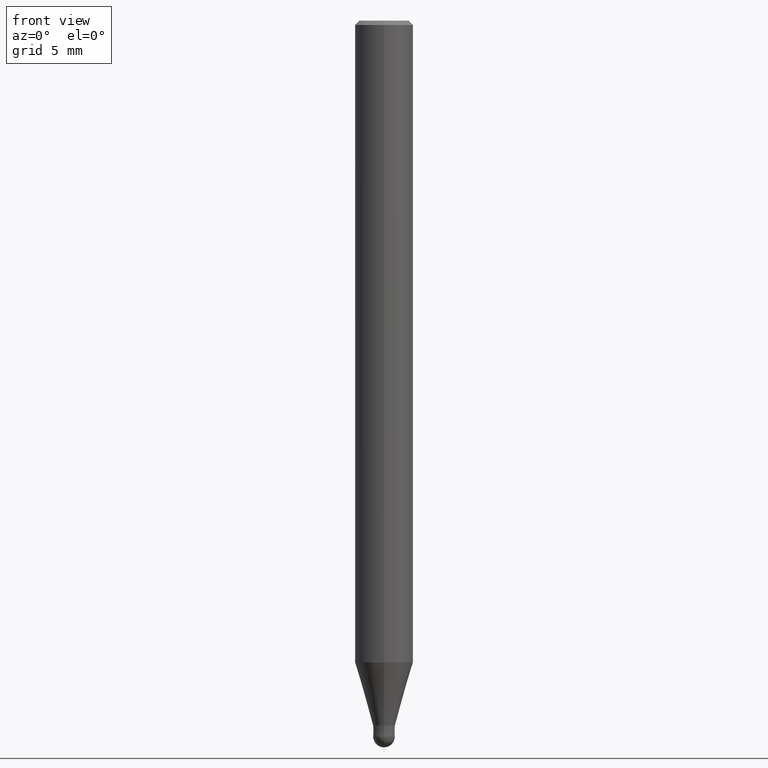
[diagram: clean part render]
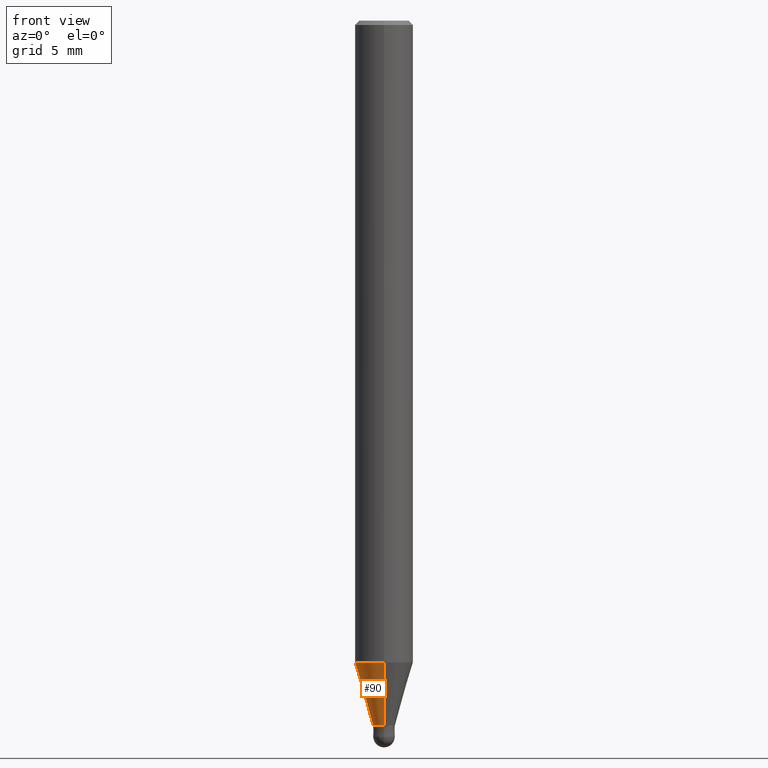
[diagram: same view with one face highlighted and labeled with its STEP entity id]
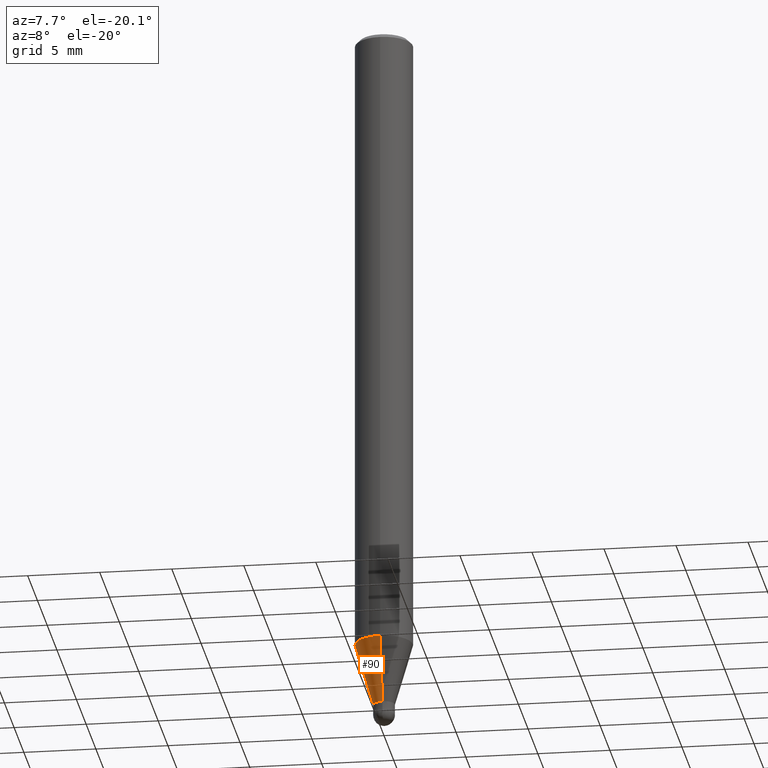
[diagram: same view with one face highlighted and labeled with its STEP entity id]
A machine part, front view. The second image highlights one B-rep face of the part: STEP entity #90.
A second angle (auxiliary view) of the same face is appended — the face is thin or edge-on in the first view.
In plain terms, the highlighted conical surface has half-angle 16.001 deg.
Its self-contained STEP definition (entity closure, byte-faithful):
#90=ADVANCED_FACE('',(#216),#217,.T.);
#96=EDGE_CURVE('',#100,#166,#224,.T.);
#100=VERTEX_POINT('',#228);
#104=EDGE_CURVE('',#154,#100,#232,.T.);
#124=EDGE_CURVE('',#184,#154,#254,.T.);
#154=VERTEX_POINT('',#288);
#162=EDGE_CURVE('',#184,#166,#296,.T.);
#166=VERTEX_POINT('',#300);
#184=VERTEX_POINT('',#322);
#216=FACE_OUTER_BOUND('',#349,.T.);
#217=CONICAL_SURFACE('',#350,1.37495,0.279268973819818);
#224=LINE('',#359,#360);
#228=CARTESIAN_POINT('',(0.0,1.99995,-44.141));
#232=CIRCLE('',#371,1.99995);
#254=LINE('',#401,#402);
#288=CARTESIAN_POINT('',(2.44915147732706E-016,-1.99995,-44.141));
#296=CIRCLE('',#452,0.74995);
#300=CARTESIAN_POINT('',(0.0,0.74995,-48.5));
#322=CARTESIAN_POINT('',(9.18393535049092E-017,-0.74995,-48.5));
#349=EDGE_LOOP('',(#505,#506,#507,#508));
#350=AXIS2_PLACEMENT_3D('',#509,#510,#511);
#359=CARTESIAN_POINT('',(-1.68377250618808E-016,1.37495,-46.3205));
#360=VECTOR('',#521,1.0);
#371=AXIS2_PLACEMENT_3D('',#528,#529,#530);
#401=CARTESIAN_POINT('',(1.68377250618808E-016,-1.37495,-46.3205));
#402=VECTOR('',#554,1.0);
#452=AXIS2_PLACEMENT_3D('',#600,#601,#602);
#505=ORIENTED_EDGE('',*,*,#96,.T.);
#506=ORIENTED_EDGE('',*,*,#162,.F.);
#507=ORIENTED_EDGE('',*,*,#124,.T.);
#508=ORIENTED_EDGE('',*,*,#104,.T.);
#509=CARTESIAN_POINT('',(0.0,0.0,-46.3205));
#510=DIRECTION('',(-0.0,-0.0,1.0));
#511=DIRECTION('',(0.0,1.0,0.0));
#521=DIRECTION('',(3.375664374138E-017,-0.27565301809855,-0.961257204713265));
#528=CARTESIAN_POINT('',(0.0,0.0,-44.141));
#529=DIRECTION('',(0.0,0.0,-1.0));
#530=DIRECTION('',(0.0,1.0,0.0));
#554=DIRECTION('',(3.375664374138E-017,-0.27565301809855,0.961257204713265));
#600=CARTESIAN_POINT('',(0.0,0.0,-48.5));
#601=DIRECTION('',(0.0,0.0,-1.0));
#602=DIRECTION('',(0.0,1.0,0.0));